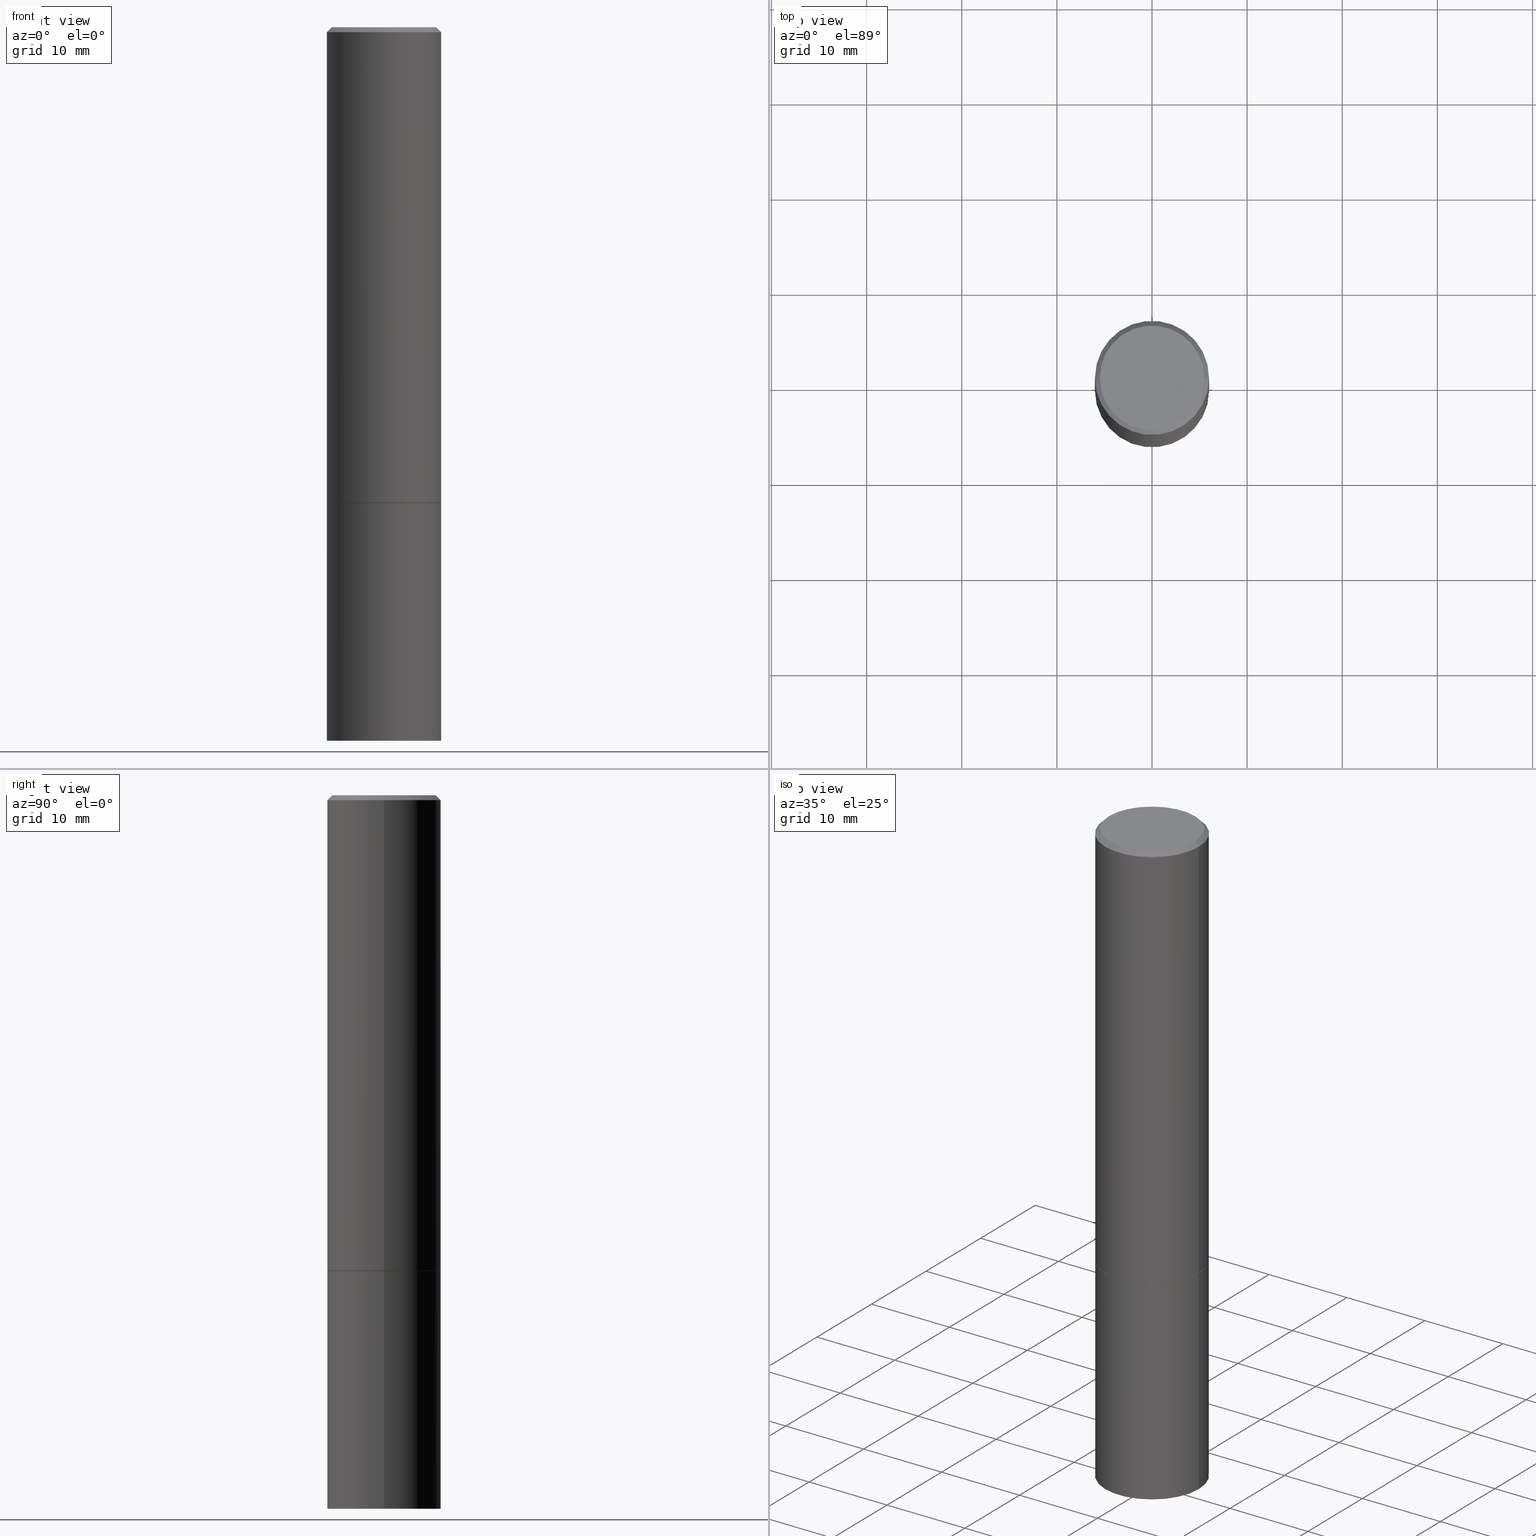
[diagram: canonical four-view strip — front | top / right | iso, engineering-drawing reading convention]
A machine part, canonical four-view strip (front | top / right | iso — engineering-drawing reading convention). The complete STEP part file that produces these views, byte-faithful:
ISO-10303-21;
HEADER;
FILE_DESCRIPTION (( 'STEP AP203' ),
    '1' );
FILE_NAME ('42616.STEP',
    '2024-02-28T03:26:31',
    ( '' ),
    ( '' ),
    'SwSTEP 2.0',
    'SolidWorks 2023',
    '' );
FILE_SCHEMA (( 'CONFIG_CONTROL_DESIGN' ));
ENDSEC;

DATA;
#1 = LOCAL_TIME ( 22, 26, 31.00000000000000000, #212 ) ;
#2 = DIRECTION ( 'NONE',  ( 1.000000000000000000, -6.982962677686268288E-15, 0.000000000000000000 ) ) ;
#3 = ADVANCED_FACE ( 'NONE', ( #285 ), #202, .T. ) ;
#4 = DIRECTION ( 'NONE',  ( 1.000000000000000000, -6.982962677686266711E-15, 4.876176775795936353E-29 ) ) ;
#5 = CARTESIAN_POINT ( 'NONE',  ( -1.043851414335219820E-46, 1.490343170380447200E-32, 4.268512490100411279E-18 ) ) ;
#6 = DIRECTION ( 'NONE',  ( -1.000000000000000000, 6.982962677686265922E-15, -4.876176775795935793E-29 ) ) ;
#7 = EDGE_LOOP ( 'NONE', ( #160, #148, #264, #338 ) ) ;
#8 = CARTESIAN_POINT ( 'NONE',  ( 0.000000000000000000, 0.000000000000000000, 0.000000000000000000 ) ) ;
#9 = LINE ( 'NONE', #290, #26 ) ;
#10 = AXIS2_PLACEMENT_3D ( 'NONE', #41, #325, #96 ) ;
#11 = COORDINATED_UNIVERSAL_TIME_OFFSET ( 5, 0, .BEHIND. ) ;
#12 = CC_DESIGN_DATE_AND_TIME_ASSIGNMENT ( #126, #125, ( #94 ) ) ;
#13 = PERSON_AND_ORGANIZATION ( #224, #319 ) ;
#14 = CIRCLE ( 'NONE', #221, 0.2161999999999997535 ) ;
#15 = CIRCLE ( 'NONE', #123, 0.2361999999999999933 ) ;
#16 = PERSON_AND_ORGANIZATION_ROLE ( 'design_supplier' ) ;
#17 = DIRECTION ( 'NONE',  ( 1.000000000000000000, -6.982962677686265133E-15, 0.000000000000000000 ) ) ;
#18 = VERTEX_POINT ( 'NONE', #117 ) ;
#19 = CC_DESIGN_APPROVAL ( #363, ( #25 ) ) ;
#20 = EDGE_CURVE ( 'NONE', #49, #251, #341, .T. ) ;
#21 = CARTESIAN_POINT ( 'NONE',  ( 4.813905344975440714E-29, -6.872981015512730918E-15, -1.968499999999999694 ) ) ;
#22 = EDGE_LOOP ( 'NONE', ( #203, #164 ) ) ;
#23 = DIRECTION ( 'NONE',  ( 1.000000000000000000, -6.982962677686265922E-15, 4.876176775795935793E-29 ) ) ;
#24 = DIRECTION ( 'NONE',  ( -2.445468806185136877E-29, 3.491481338843145188E-15, 1.000000000000000000 ) ) ;
#25 = PRODUCT_DEFINITION ( 'UNKNOWN', '', #231, #187 ) ;
#26 = VECTOR ( 'NONE', #119, 39.37007874015748143 ) ;
#27 = AXIS2_PLACEMENT_3D ( 'NONE', #320, #59, #230 ) ;
#28 = DIRECTION ( 'NONE',  ( 1.000000000000000000, -6.982962677686267499E-15, 4.876217060660161280E-29 ) ) ;
#29 = VERTEX_POINT ( 'NONE', #322 ) ;
#30 = PLANE ( 'NONE',  #210 ) ;
#31 = LINE ( 'NONE', #147, #85 ) ;
#32 = EDGE_LOOP ( 'NONE', ( #295, #287, #37, #107 ) ) ;
#33 = AXIS2_PLACEMENT_3D ( 'NONE', #176, #344, #194 ) ;
#34 = VECTOR ( 'NONE', #165, 39.37007874015748143 ) ;
#35 = APPROVAL ( #327, 'UNSPECIFIED' ) ;
#36 = ADVANCED_FACE ( 'NONE', ( #64 ), #139, .T. ) ;
#37 = ORIENTED_EDGE ( 'NONE', *, *, #191, .F. ) ;
#38 = DATE_AND_TIME ( #299, #1 ) ;
#39 = CC_DESIGN_APPROVAL ( #302, ( #231 ) ) ;
#40 = DATE_AND_TIME ( #186, #99 ) ;
#41 = CARTESIAN_POINT ( 'NONE',  ( 4.890937612370292426E-31, -6.982962677686317493E-17, -0.02000000000000007674 ) ) ;
#42 = CALENDAR_DATE ( 2024, 27, 2 ) ;
#43 = APPROVAL_PERSON_ORGANIZATION ( #268, #302, #208 ) ;
#44 = SHAPE_DEFINITION_REPRESENTATION ( #131, #321 ) ;
#45 = ORIENTED_EDGE ( 'NONE', *, *, #195, .T. ) ;
#46 = APPLICATION_CONTEXT ( 'configuration controlled 3d designs of mechanical parts and assemblies' ) ;
#47 = PRODUCT ( '42616', '42616', '', ( #60 ) ) ;
#48 = LINE ( 'NONE', #52, #34 ) ;
#49 = VERTEX_POINT ( 'NONE', #201 ) ;
#50 = EDGE_LOOP ( 'NONE', ( #366, #280, #355, #309 ) ) ;
#51 = CIRCLE ( 'NONE', #27, 0.2361999999999999933 ) ;
#52 = CARTESIAN_POINT ( 'NONE',  ( 0.2361999999999997990, -1.690279253850497391E-15, -0.02000000000000007674 ) ) ;
#53 = PRODUCT_RELATED_PRODUCT_CATEGORY ( 'detail', '', ( #47 ) ) ;
#54 = CARTESIAN_POINT ( 'NONE',  ( -0.2361999999999999933, -1.791357638610017633E-15, -1.967499999999999805 ) ) ;
#55 = DIRECTION ( 'NONE',  ( 1.000000000000000000, -6.982962677686266711E-15, 4.876176775795936353E-29 ) ) ;
#56 = FACE_OUTER_BOUND ( 'NONE', #111, .T. ) ;
#57 = AXIS2_PLACEMENT_3D ( 'NONE', #90, #258, #323 ) ;
#58 = VECTOR ( 'NONE', #102, 39.37007874015748143 ) ;
#59 = DIRECTION ( 'NONE',  ( -2.445468806185136597E-29, 3.491481338843145583E-15, 1.000000000000000000 ) ) ;
#60 = MECHANICAL_CONTEXT ( 'NONE', #116, 'mechanical' ) ;
#61 = DIRECTION ( 'NONE',  ( -2.445468806185136877E-29, 3.491481338843145188E-15, 1.000000000000000000 ) ) ;
#62 = ADVANCED_FACE ( 'NONE', ( #172 ), #256, .F. ) ;
#63 = DIRECTION ( 'NONE',  ( -2.438088387897960049E-29, 3.491481338843145188E-15, 1.000000000000000000 ) ) ;
#64 = FACE_OUTER_BOUND ( 'NONE', #136, .T. ) ;
#65 = CIRCLE ( 'NONE', #235, 0.2361999999999999933 ) ;
#66 = AXIS2_PLACEMENT_3D ( 'NONE', #171, #63, #23 ) ;
#67 = DIRECTION ( 'NONE',  ( -2.445468806185136597E-29, 3.491481338843145583E-15, 1.000000000000000000 ) ) ;
#68 = DIMENSIONAL_EXPONENTS ( 1.000000000000000000, 0.000000000000000000, 0.000000000000000000, 0.000000000000000000, 0.000000000000000000, 0.000000000000000000, 0.000000000000000000 ) ;
#69 = APPROVAL_DATE_TIME ( #101, #35 ) ;
#70 = CARTESIAN_POINT ( 'NONE',  ( 0.2161999999999997535, -1.586759460484350410E-15, 4.268512490111238857E-18 ) ) ;
#71 = PERSON_AND_ORGANIZATION ( #224, #319 ) ;
#72 = CYLINDRICAL_SURFACE ( 'NONE', #337, 0.2361999999999999933 ) ;
#73 = VERTEX_POINT ( 'NONE', #112 ) ;
#74 = COORDINATED_UNIVERSAL_TIME_OFFSET ( 5, 0, .BEHIND. ) ;
#75 = AXIS2_PLACEMENT_3D ( 'NONE', #353, #154, #328 ) ;
#76 = MANIFOLD_SOLID_BREP ( 'Body-Move/Copy2[1]', #312 ) ;
#77 = CARTESIAN_POINT ( 'NONE',  ( 7.220980290903470182E-29, -1.030964609733603853E-14, -2.952799999999999869 ) ) ;
#78 = EDGE_CURVE ( 'NONE', #141, #29, #346, .T. ) ;
#79 = ORIENTED_EDGE ( 'NONE', *, *, #259, .F. ) ;
#80 = EDGE_CURVE ( 'NONE', #251, #49, #351, .T. ) ;
#81 = PLANE ( 'NONE',  #66 ) ;
#82 = DIRECTION ( 'NONE',  ( -2.445468806185136597E-29, 3.491481338843145583E-15, 1.000000000000000000 ) ) ;
#83 = DIRECTION ( 'NONE',  ( -2.445468806185136597E-29, 3.491481338843145583E-15, 1.000000000000000000 ) ) ;
#84 = DIRECTION ( 'NONE',  ( 1.000000000000000000, -6.982962677686268288E-15, 0.000000000000000000 ) ) ;
#85 = VECTOR ( 'NONE', #24, 39.37007874015748143 ) ;
#86 =( NAMED_UNIT ( * ) PLANE_ANGLE_UNIT ( ) SI_UNIT ( $, .RADIAN. ) );
#87 = CARTESIAN_POINT ( 'NONE',  ( 4.890937612370292426E-31, -6.982962677686317493E-17, -0.02000000000000007674 ) ) ;
#88 = EDGE_CURVE ( 'NONE', #324, #251, #9, .T. ) ;
#89 =( CONVERSION_BASED_UNIT ( 'INCH', #146 ) LENGTH_UNIT ( ) NAMED_UNIT ( #68 ) );
#90 = CARTESIAN_POINT ( 'NONE',  ( 0.000000000000000000, 0.000000000000000000, 0.000000000000000000 ) ) ;
#91 = ORIENTED_EDGE ( 'NONE', *, *, #274, .T. ) ;
#92 = CLOSED_SHELL ( 'NONE', ( #155, #3, #170, #204, #36, #127, #293, #62 ) ) ;
#93 = EDGE_CURVE ( 'NONE', #181, #73, #31, .T. ) ;
#94 = SECURITY_CLASSIFICATION ( '', '', #128 ) ;
#95 = EDGE_LOOP ( 'NONE', ( #311, #133 ) ) ;
#96 = DIRECTION ( 'NONE',  ( -1.000000000000000000, 6.982962677686266711E-15, 0.000000000000000000 ) ) ;
#97 = DIRECTION ( 'NONE',  ( 1.000000000000000000, -6.982962677686268288E-15, 0.000000000000000000 ) ) ;
#98 = COORDINATED_UNIVERSAL_TIME_OFFSET ( 5, 0, .BEHIND. ) ;
#99 = LOCAL_TIME ( 22, 26, 31.00000000000000000, #74 ) ;
#100 = EDGE_CURVE ( 'NONE', #151, #18, #14, .T. ) ;
#101 = DATE_AND_TIME ( #332, #193 ) ;
#102 = DIRECTION ( 'NONE',  ( -0.7071067811865465735, 2.468850131082246805E-15, -0.7071067811865484609 ) ) ;
#103 = EDGE_CURVE ( 'NONE', #236, #190, #113, .T. ) ;
#104 = DIRECTION ( 'NONE',  ( -2.445468806185136597E-29, 3.491481338843145583E-15, 1.000000000000000000 ) ) ;
#105 = CIRCLE ( 'NONE', #115, 0.2161999999999997535 ) ;
#106 = VERTEX_POINT ( 'NONE', #197 ) ;
#107 = ORIENTED_EDGE ( 'NONE', *, *, #220, .F. ) ;
#108 = AXIS2_PLACEMENT_3D ( 'NONE', #232, #250, #281 ) ;
#109 = DIRECTION ( 'NONE',  ( 0.000000000000000000, 0.000000000000000000, 1.000000000000000000 ) ) ;
#110 = DIRECTION ( 'NONE',  ( -2.445468806185136597E-29, 3.491481338843145583E-15, 1.000000000000000000 ) ) ;
#111 = EDGE_LOOP ( 'NONE', ( #278, #118, #200, #114 ) ) ;
#112 = CARTESIAN_POINT ( 'NONE',  ( -0.2361999999999999933, -6.913011614559027935E-15, -1.968499999999999694 ) ) ;
#113 = CIRCLE ( 'NONE', #216, 0.2351999999999999924 ) ;
#114 = ORIENTED_EDGE ( 'NONE', *, *, #135, .F. ) ;
#115 = AXIS2_PLACEMENT_3D ( 'NONE', #156, #234, #349 ) ;
#116 = APPLICATION_CONTEXT ( 'configuration controlled 3d designs of mechanical parts and assemblies' ) ;
#117 = CARTESIAN_POINT ( 'NONE',  ( -0.2161999999999997535, 1.544631344304200395E-15, 4.268512490089730842E-18 ) ) ;
#118 = ORIENTED_EDGE ( 'NONE', *, *, #103, .T. ) ;
#119 = DIRECTION ( 'NONE',  ( -2.445468806185136877E-29, 3.491481338843145188E-15, 1.000000000000000000 ) ) ;
#120 = CC_DESIGN_PERSON_AND_ORGANIZATION_ASSIGNMENT ( #182, #304, ( #94 ) ) ;
#121 = LINE ( 'NONE', #124, #237 ) ;
#122 = ORIENTED_EDGE ( 'NONE', *, *, #78, .T. ) ;
#123 = AXIS2_PLACEMENT_3D ( 'NONE', #77, #188, #308 ) ;
#124 = CARTESIAN_POINT ( 'NONE',  ( 0.2361999999999998823, -1.649375784469495539E-15, 1.151752954442999528E-29 ) ) ;
#125 = DATE_TIME_ROLE ( 'classification_date' ) ;
#126 = DATE_AND_TIME ( #213, #247 ) ;
#127 = ADVANCED_FACE ( 'NONE', ( #56 ), #329, .T. ) ;
#128 = SECURITY_CLASSIFICATION_LEVEL ( 'unclassified' ) ;
#129 = FACE_OUTER_BOUND ( 'NONE', #339, .T. ) ;
#130 = APPROVAL_DATE_TIME ( #269, #302 ) ;
#131 = PRODUCT_DEFINITION_SHAPE ( 'NONE', 'NONE',  #25 ) ;
#132 = CIRCLE ( 'NONE', #153, 0.2361999999999999933 ) ;
#133 = ORIENTED_EDGE ( 'NONE', *, *, #331, .T. ) ;
#134 = CYLINDRICAL_SURFACE ( 'NONE', #330, 0.2361999999999999933 ) ;
#135 = EDGE_CURVE ( 'NONE', #324, #106, #65, .T. ) ;
#136 = EDGE_LOOP ( 'NONE', ( #242, #249, #364, #350 ) ) ;
#137 = FACE_OUTER_BOUND ( 'NONE', #22, .T. ) ;
#138 = CONICAL_SURFACE ( 'NONE', #282, 0.2351999999999999924, 0.7853981633974141952 ) ;
#139 = CYLINDRICAL_SURFACE ( 'NONE', #57, 0.2361999999999998823 ) ;
#140 = CARTESIAN_POINT ( 'NONE',  ( 4.813905344975440714E-29, -6.872981015512730918E-15, -1.968499999999999694 ) ) ;
#141 = VERTEX_POINT ( 'NONE', #179 ) ;
#142 = CC_DESIGN_PERSON_AND_ORGANIZATION_ASSIGNMENT ( #180, #157, ( #47 ) ) ;
#143 = CARTESIAN_POINT ( 'NONE',  ( 0.000000000000000000, 0.000000000000000000, 0.000000000000000000 ) ) ;
#144 = DIRECTION ( 'NONE',  ( 2.438088387897960049E-29, -3.491481338843145188E-15, -1.000000000000000000 ) ) ;
#145 = ORIENTED_EDGE ( 'NONE', *, *, #78, .F. ) ;
#146 = LENGTH_MEASURE_WITH_UNIT ( LENGTH_MEASURE( 0.02539999999999999897 ), #289 );
#147 = CARTESIAN_POINT ( 'NONE',  ( -0.2361999999999999933, 1.678301941865356591E-15, -1.161852468318208757E-29 ) ) ;
#148 = ORIENTED_EDGE ( 'NONE', *, *, #195, .F. ) ;
#149 = AXIS2_PLACEMENT_3D ( 'NONE', #272, #162, #248 ) ;
#150 = DIRECTION ( 'NONE',  ( 1.000000000000000000, -6.982962677686266711E-15, 0.000000000000000000 ) ) ;
#151 = VERTEX_POINT ( 'NONE', #70 ) ;
#152 = FACE_OUTER_BOUND ( 'NONE', #229, .T. ) ;
#153 = AXIS2_PLACEMENT_3D ( 'NONE', #189, #104, #17 ) ;
#154 = DIRECTION ( 'NONE',  ( -2.445468806185136597E-29, 3.491481338843145583E-15, 1.000000000000000000 ) ) ;
#155 = ADVANCED_FACE ( 'NONE', ( #183 ), #138, .T. ) ;
#156 = CARTESIAN_POINT ( 'NONE',  ( -1.043851414335219820E-46, 1.490343170380447200E-32, 4.268512490100411279E-18 ) ) ;
#157 = PERSON_AND_ORGANIZATION_ROLE ( 'design_owner' ) ;
#158 = CONICAL_SURFACE ( 'NONE', #10, 0.2361999999999997990, 0.7853981633974469467 ) ;
#159 = APPROVAL_STATUS ( 'not_yet_approved' ) ;
#160 = ORIENTED_EDGE ( 'NONE', *, *, #274, .F. ) ;
#161 = EDGE_LOOP ( 'NONE', ( #218, #298, #173, #145 ) ) ;
#162 = DIRECTION ( 'NONE',  ( 2.445468806185136597E-29, -3.491481338843145583E-15, -1.000000000000000000 ) ) ;
#163 = LOCAL_TIME ( 22, 26, 31.00000000000000000, #358 ) ;
#164 = ORIENTED_EDGE ( 'NONE', *, *, #238, .F. ) ;
#165 = DIRECTION ( 'NONE',  ( 0.7071067811865465735, -7.319954787623252890E-15, -0.7071067811865484609 ) ) ;
#166 = FACE_OUTER_BOUND ( 'NONE', #262, .T. ) ;
#167 = CARTESIAN_POINT ( 'NONE',  ( 1.509716530915769140E-15, 0.2161999999999997535, -7.527240092128371176E-16 ) ) ;
#168 = CARTESIAN_POINT ( 'NONE',  ( 1.649375784469568312E-15, 0.2361999999999896960, -2.952800000000000757 ) ) ;
#169 =( GEOMETRIC_REPRESENTATION_CONTEXT ( 3 ) GLOBAL_UNCERTAINTY_ASSIGNED_CONTEXT ( ( #241 ) ) GLOBAL_UNIT_ASSIGNED_CONTEXT ( ( #89, #86, #199 ) ) REPRESENTATION_CONTEXT ( 'NONE', 'WORKASPACE' ) );
#170 = ADVANCED_FACE ( 'NONE', ( #152 ), #158, .T. ) ;
#171 = CARTESIAN_POINT ( 'NONE',  ( 4.813905344975440714E-29, -6.872981015512730918E-15, -1.968499999999999694 ) ) ;
#172 = FACE_OUTER_BOUND ( 'NONE', #206, .T. ) ;
#173 = ORIENTED_EDGE ( 'NONE', *, *, #335, .F. ) ;
#174 = DIRECTION ( 'NONE',  ( -1.000000000000000000, 6.982962677686265922E-15, -4.876176775795935793E-29 ) ) ;
#175 = FACE_OUTER_BOUND ( 'NONE', #95, .T. ) ;
#176 = CARTESIAN_POINT ( 'NONE',  ( 0.000000000000000000, 0.000000000000000000, 0.000000000000000000 ) ) ;
#177 = AXIS2_PLACEMENT_3D ( 'NONE', #87, #82, #318 ) ;
#178 = APPROVAL_PERSON_ORGANIZATION ( #184, #363, #354 ) ;
#179 = CARTESIAN_POINT ( 'NONE',  ( 0.2361999999999999933, -1.195902188180553348E-14, -2.952799999999999869 ) ) ;
#180 = PERSON_AND_ORGANIZATION ( #224, #319 ) ;
#181 = VERTEX_POINT ( 'NONE', #296 ) ;
#182 = PERSON_AND_ORGANIZATION ( #224, #319 ) ;
#183 = FACE_OUTER_BOUND ( 'NONE', #32, .T. ) ;
#184 = PERSON_AND_ORGANIZATION ( #224, #319 ) ;
#185 = EDGE_CURVE ( 'NONE', #106, #49, #121, .T. ) ;
#186 = CALENDAR_DATE ( 2024, 27, 2 ) ;
#187 = DESIGN_CONTEXT ( 'detailed design', #46, 'design' ) ;
#188 = DIRECTION ( 'NONE',  ( -2.445468806185136597E-29, 3.491481338843145583E-15, 1.000000000000000000 ) ) ;
#189 = CARTESIAN_POINT ( 'NONE',  ( 7.220980290903470182E-29, -1.030964609733603853E-14, -2.952799999999999869 ) ) ;
#190 = VERTEX_POINT ( 'NONE', #239 ) ;
#191 = EDGE_CURVE ( 'NONE', #106, #324, #270, .T. ) ;
#192 = AXIS2_PLACEMENT_3D ( 'NONE', #140, #228, #84 ) ;
#193 = LOCAL_TIME ( 22, 26, 31.00000000000000000, #98 ) ;
#194 = DIRECTION ( 'NONE',  ( 1.000000000000000000, -6.982962677686267499E-15, 4.876176775795936353E-29 ) ) ;
#195 = EDGE_CURVE ( 'NONE', #18, #151, #105, .T. ) ;
#196 = LINE ( 'NONE', #227, #291 ) ;
#197 = CARTESIAN_POINT ( 'NONE',  ( 0.2361999999999999933, -8.518865318643383648E-15, -1.967499999999999805 ) ) ;
#198 = MANIFOLD_SOLID_BREP ( 'Body-Move/Copy2[2]', #92 ) ;
#199 =( NAMED_UNIT ( * ) SI_UNIT ( $, .STERADIAN. ) SOLID_ANGLE_UNIT ( ) );
#200 = ORIENTED_EDGE ( 'NONE', *, *, #220, .T. ) ;
#201 = CARTESIAN_POINT ( 'NONE',  ( 0.2361999999999997990, -1.690279253850497391E-15, -0.02000000000000007674 ) ) ;
#202 = CYLINDRICAL_SURFACE ( 'NONE', #33, 0.2361999999999998823 ) ;
#203 = ORIENTED_EDGE ( 'NONE', *, *, #252, .F. ) ;
#204 = ADVANCED_FACE ( 'NONE', ( #294 ), #313, .T. ) ;
#205 = DIRECTION ( 'NONE',  ( 1.000000000000000000, -6.982962677686269077E-15, 0.000000000000000000 ) ) ;
#206 = EDGE_LOOP ( 'NONE', ( #45, #314 ) ) ;
#207 = EDGE_CURVE ( 'NONE', #18, #251, #277, .T. ) ;
#208 = APPROVAL_ROLE ( '' ) ;
#209 = APPROVAL_DATE_TIME ( #38, #363 ) ;
#210 = AXIS2_PLACEMENT_3D ( 'NONE', #315, #255, #174 ) ;
#211 = CC_DESIGN_PERSON_AND_ORGANIZATION_ASSIGNMENT ( #301, #16, ( #231 ) ) ;
#212 = COORDINATED_UNIVERSAL_TIME_OFFSET ( 5, 0, .BEHIND. ) ;
#213 = CALENDAR_DATE ( 2024, 27, 2 ) ;
#214 = LINE ( 'NONE', #306, #223 ) ;
#215 = DATE_TIME_ROLE ( 'creation_date' ) ;
#216 = AXIS2_PLACEMENT_3D ( 'NONE', #260, #316, #2 ) ;
#217 = CIRCLE ( 'NONE', #108, 0.2361999999999999933 ) ;
#218 = ORIENTED_EDGE ( 'NONE', *, *, #252, .T. ) ;
#219 = CARTESIAN_POINT ( 'NONE',  ( -0.2351999999999999924, -5.196486046656753130E-15, -1.968499999999999694 ) ) ;
#220 = EDGE_CURVE ( 'NONE', #190, #106, #214, .T. ) ;
#221 = AXIS2_PLACEMENT_3D ( 'NONE', #5, #110, #28 ) ;
#222 = DIRECTION ( 'NONE',  ( 1.000000000000000000, 0.000000000000000000, 0.000000000000000000 ) ) ;
#223 = VECTOR ( 'NONE', #361, 39.37007874015748854 ) ;
#224 = PERSON ( 'UNSPECIFIED', 'UNSPECIFIED', 'UNSPECIFIED', ('UNSPECIFIED'), ('UNSPECIFIED'), ('UNSPECIFIED') ) ;
#225 = ORIENTED_EDGE ( 'NONE', *, *, #331, .F. ) ;
#226 = CC_DESIGN_DATE_AND_TIME_ASSIGNMENT ( #40, #215, ( #25 ) ) ;
#227 = CARTESIAN_POINT ( 'NONE',  ( -0.2351999999999999924, -5.201784501004975532E-15, -1.968499999999999694 ) ) ;
#228 = DIRECTION ( 'NONE',  ( -2.445468806185136597E-29, 3.491481338843145583E-15, 1.000000000000000000 ) ) ;
#229 = EDGE_LOOP ( 'NONE', ( #273, #91, #233, #275 ) ) ;
#230 = DIRECTION ( 'NONE',  ( 1.000000000000000000, -6.982962677686265133E-15, 0.000000000000000000 ) ) ;
#231 = PRODUCT_DEFINITION_FORMATION_WITH_SPECIFIED_SOURCE ( 'ANY', '', #47, .NOT_KNOWN. ) ;
#232 = CARTESIAN_POINT ( 'NONE',  ( 4.813905344975440714E-29, -6.872981015512730918E-15, -1.968499999999999694 ) ) ;
#233 = ORIENTED_EDGE ( 'NONE', *, *, #20, .T. ) ;
#234 = DIRECTION ( 'NONE',  ( -2.445468806185136597E-29, 3.491481338843145583E-15, 1.000000000000000000 ) ) ;
#235 = AXIS2_PLACEMENT_3D ( 'NONE', #333, #67, #205 ) ;
#236 = VERTEX_POINT ( 'NONE', #219 ) ;
#237 = VECTOR ( 'NONE', #265, 39.37007874015748143 ) ;
#238 = EDGE_CURVE ( 'NONE', #181, #141, #132, .T. ) ;
#239 = CARTESIAN_POINT ( 'NONE',  ( 0.2351999999999999924, -8.515373837304542218E-15, -1.968499999999999694 ) ) ;
#240 = PERSON_AND_ORGANIZATION_ROLE ( 'creator' ) ;
#241 = UNCERTAINTY_MEASURE_WITH_UNIT (LENGTH_MEASURE( 1.000000000000000082E-05 ), #89, 'distance_accuracy_value', 'NONE');
#242 = ORIENTED_EDGE ( 'NONE', *, *, #88, .F. ) ;
#243 = APPROVAL_ROLE ( '' ) ;
#244 = CC_DESIGN_PERSON_AND_ORGANIZATION_ASSIGNMENT ( #71, #240, ( #25 ) ) ;
#245 = PERSON_AND_ORGANIZATION ( #224, #319 ) ;
#246 = CC_DESIGN_SECURITY_CLASSIFICATION ( #94, ( #231 ) ) ;
#247 = LOCAL_TIME ( 22, 26, 31.00000000000000000, #11 ) ;
#248 = DIRECTION ( 'NONE',  ( -1.000000000000000000, 6.982962677686266711E-15, 0.000000000000000000 ) ) ;
#249 = ORIENTED_EDGE ( 'NONE', *, *, #135, .T. ) ;
#250 = DIRECTION ( 'NONE',  ( -2.445468806185136597E-29, 3.491481338843145583E-15, 1.000000000000000000 ) ) ;
#251 = VERTEX_POINT ( 'NONE', #310 ) ;
#252 = EDGE_CURVE ( 'NONE', #141, #181, #15, .T. ) ;
#253 = FACE_OUTER_BOUND ( 'NONE', #161, .T. ) ;
#254 = DIRECTION ( 'NONE',  ( -2.445468806185136597E-29, 3.491481338843145583E-15, 1.000000000000000000 ) ) ;
#255 = DIRECTION ( 'NONE',  ( 2.438088387897960049E-29, -3.491481338843145188E-15, -1.000000000000000000 ) ) ;
#256 = PLANE ( 'NONE',  #336 ) ;
#257 = ORIENTED_EDGE ( 'NONE', *, *, #93, .F. ) ;
#258 = DIRECTION ( 'NONE',  ( -2.445468806185136597E-29, 3.491481338843145583E-15, 1.000000000000000000 ) ) ;
#259 = EDGE_CURVE ( 'NONE', #190, #236, #347, .T. ) ;
#260 = CARTESIAN_POINT ( 'NONE',  ( 4.813905344975440714E-29, -6.872981015512730918E-15, -1.968499999999999694 ) ) ;
#261 = CARTESIAN_POINT ( 'NONE',  ( 4.890937612370292426E-31, -6.982962677686317493E-17, -0.02000000000000007674 ) ) ;
#262 = EDGE_LOOP ( 'NONE', ( #79, #271 ) ) ;
#263 = CC_DESIGN_PERSON_AND_ORGANIZATION_ASSIGNMENT ( #13, #267, ( #231 ) ) ;
#264 = ORIENTED_EDGE ( 'NONE', *, *, #207, .T. ) ;
#265 = DIRECTION ( 'NONE',  ( -2.445468806185136877E-29, 3.491481338843145188E-15, 1.000000000000000000 ) ) ;
#266 = VECTOR ( 'NONE', #61, 39.37007874015748143 ) ;
#267 = PERSON_AND_ORGANIZATION_ROLE ( 'creator' ) ;
#268 = PERSON_AND_ORGANIZATION ( #224, #319 ) ;
#269 = DATE_AND_TIME ( #42, #163 ) ;
#270 = CIRCLE ( 'NONE', #75, 0.2361999999999999933 ) ;
#271 = ORIENTED_EDGE ( 'NONE', *, *, #103, .F. ) ;
#272 = CARTESIAN_POINT ( 'NONE',  ( 4.890937612370292426E-31, -6.982962677686317493E-17, -0.02000000000000007674 ) ) ;
#273 = ORIENTED_EDGE ( 'NONE', *, *, #100, .F. ) ;
#274 = EDGE_CURVE ( 'NONE', #151, #49, #48, .T. ) ;
#275 = ORIENTED_EDGE ( 'NONE', *, *, #207, .F. ) ;
#276 = AXIS2_PLACEMENT_3D ( 'NONE', #261, #254, #150 ) ;
#277 = LINE ( 'NONE', #359, #58 ) ;
#278 = ORIENTED_EDGE ( 'NONE', *, *, #345, .F. ) ;
#279 = ADVANCED_FACE ( 'NONE', ( #129 ), #72, .T. ) ;
#280 = ORIENTED_EDGE ( 'NONE', *, *, #88, .T. ) ;
#281 = DIRECTION ( 'NONE',  ( 1.000000000000000000, -6.982962677686265133E-15, 0.000000000000000000 ) ) ;
#282 = AXIS2_PLACEMENT_3D ( 'NONE', #326, #352, #97 ) ;
#283 = DIRECTION ( 'NONE',  ( 2.438088387897960049E-29, -3.491481338843145188E-15, -1.000000000000000000 ) ) ;
#284 = AXIS2_PLACEMENT_3D ( 'NONE', #21, #362, #340 ) ;
#285 = FACE_OUTER_BOUND ( 'NONE', #50, .T. ) ;
#286 = DIRECTION ( 'NONE',  ( -2.445468806185136597E-29, 3.491481338843145583E-15, 1.000000000000000000 ) ) ;
#287 = ORIENTED_EDGE ( 'NONE', *, *, #345, .T. ) ;
#288 = ADVANCED_FACE ( 'NONE', ( #175 ), #30, .F. ) ;
#289 =( LENGTH_UNIT ( ) NAMED_UNIT ( * ) SI_UNIT ( $, .METRE. ) );
#290 = CARTESIAN_POINT ( 'NONE',  ( -0.2361999999999998823, 1.678301941865355803E-15, -1.161852468318208336E-29 ) ) ;
#291 = VECTOR ( 'NONE', #348, 39.37007874015748854 ) ;
#292 = CARTESIAN_POINT ( 'NONE',  ( 0.2361999999999999933, -1.649375784469496131E-15, 1.151752954443000088E-29 ) ) ;
#293 = ADVANCED_FACE ( 'NONE', ( #166 ), #81, .F. ) ;
#294 = FACE_OUTER_BOUND ( 'NONE', #7, .T. ) ;
#295 = ORIENTED_EDGE ( 'NONE', *, *, #259, .T. ) ;
#296 = CARTESIAN_POINT ( 'NONE',  ( -0.2361999999999999933, -6.913011614559027935E-15, -2.952799999999999869 ) ) ;
#297 = APPROVAL_PERSON_ORGANIZATION ( #245, #35, #243 ) ;
#298 = ORIENTED_EDGE ( 'NONE', *, *, #93, .T. ) ;
#299 = CALENDAR_DATE ( 2024, 27, 2 ) ;
#300 = ORIENTED_EDGE ( 'NONE', *, *, #238, .T. ) ;
#301 = PERSON_AND_ORGANIZATION ( #224, #319 ) ;
#302 = APPROVAL ( #159, 'UNSPECIFIED' ) ;
#303 = APPROVAL_STATUS ( 'not_yet_approved' ) ;
#304 = PERSON_AND_ORGANIZATION_ROLE ( 'classification_officer' ) ;
#305 = CC_DESIGN_APPROVAL ( #35, ( #94 ) ) ;
#306 = CARTESIAN_POINT ( 'NONE',  ( 0.2351999999999999924, -8.515373837304542218E-15, -1.968499999999999694 ) ) ;
#307 = ADVANCED_FACE ( 'NONE', ( #253 ), #134, .T. ) ;
#308 = DIRECTION ( 'NONE',  ( 1.000000000000000000, -6.982962677686265133E-15, 0.000000000000000000 ) ) ;
#309 = ORIENTED_EDGE ( 'NONE', *, *, #185, .F. ) ;
#310 = CARTESIAN_POINT ( 'NONE',  ( -0.2361999999999997990, 1.579546157692631649E-15, -0.02000000000000007674 ) ) ;
#311 = ORIENTED_EDGE ( 'NONE', *, *, #335, .T. ) ;
#312 = CLOSED_SHELL ( 'NONE', ( #307, #357, #288, #279 ) ) ;
#313 = CONICAL_SURFACE ( 'NONE', #149, 0.2361999999999997990, 0.7853981633974469467 ) ;
#314 = ORIENTED_EDGE ( 'NONE', *, *, #100, .T. ) ;
#315 = CARTESIAN_POINT ( 'NONE',  ( 1.649375784469544054E-15, 0.2361999999999931377, -1.968500000000000583 ) ) ;
#316 = DIRECTION ( 'NONE',  ( -2.445468806185136597E-29, 3.491481338843145583E-15, 1.000000000000000000 ) ) ;
#317 = PLANE ( 'NONE',  #360 ) ;
#318 = DIRECTION ( 'NONE',  ( 1.000000000000000000, -6.982962677686266711E-15, 0.000000000000000000 ) ) ;
#319 = ORGANIZATION ( 'UNSPECIFIED', 'UNSPECIFIED', '' ) ;
#320 = CARTESIAN_POINT ( 'NONE',  ( 4.813905344975440714E-29, -6.872981015512730918E-15, -1.968499999999999694 ) ) ;
#321 = ADVANCED_BREP_SHAPE_REPRESENTATION ( '42616', ( #76, #198, #356 ), #169 ) ;
#322 = CARTESIAN_POINT ( 'NONE',  ( 0.2361999999999999933, -8.522356799982226655E-15, -1.968499999999999694 ) ) ;
#323 = DIRECTION ( 'NONE',  ( 1.000000000000000000, -6.982962677686267499E-15, 4.876176775795936353E-29 ) ) ;
#324 = VERTEX_POINT ( 'NONE', #54 ) ;
#325 = DIRECTION ( 'NONE',  ( 2.445468806185136597E-29, -3.491481338843145583E-15, -1.000000000000000000 ) ) ;
#326 = CARTESIAN_POINT ( 'NONE',  ( 4.813905344975440714E-29, -6.872981015512730918E-15, -1.968499999999999694 ) ) ;
#327 = APPROVAL_STATUS ( 'not_yet_approved' ) ;
#328 = DIRECTION ( 'NONE',  ( 1.000000000000000000, -6.982962677686269077E-15, 0.000000000000000000 ) ) ;
#329 = CONICAL_SURFACE ( 'NONE', #192, 0.2351999999999999924, 0.7853981633974141952 ) ;
#330 = AXIS2_PLACEMENT_3D ( 'NONE', #143, #286, #4 ) ;
#331 = EDGE_CURVE ( 'NONE', #73, #29, #51, .T. ) ;
#332 = CALENDAR_DATE ( 2024, 27, 2 ) ;
#333 = CARTESIAN_POINT ( 'NONE',  ( 4.811459876169255671E-29, -6.869489534173887122E-15, -1.967499999999999805 ) ) ;
#334 = APPLICATION_PROTOCOL_DEFINITION ( 'international standard', 'config_control_design', 1994, #46 ) ;
#335 = EDGE_CURVE ( 'NONE', #29, #73, #217, .T. ) ;
#336 = AXIS2_PLACEMENT_3D ( 'NONE', #167, #144, #6 ) ;
#337 = AXIS2_PLACEMENT_3D ( 'NONE', #343, #83, #55 ) ;
#338 = ORIENTED_EDGE ( 'NONE', *, *, #80, .T. ) ;
#339 = EDGE_LOOP ( 'NONE', ( #257, #300, #122, #225 ) ) ;
#340 = DIRECTION ( 'NONE',  ( 1.000000000000000000, -6.982962677686268288E-15, 0.000000000000000000 ) ) ;
#341 = CIRCLE ( 'NONE', #177, 0.2361999999999997990 ) ;
#342 = APPLICATION_PROTOCOL_DEFINITION ( 'international standard', 'config_control_design', 1994, #116 ) ;
#343 = CARTESIAN_POINT ( 'NONE',  ( 0.000000000000000000, 0.000000000000000000, 0.000000000000000000 ) ) ;
#344 = DIRECTION ( 'NONE',  ( -2.445468806185136597E-29, 3.491481338843145583E-15, 1.000000000000000000 ) ) ;
#345 = EDGE_CURVE ( 'NONE', #236, #324, #196, .T. ) ;
#346 = LINE ( 'NONE', #292, #266 ) ;
#347 = CIRCLE ( 'NONE', #284, 0.2351999999999999924 ) ;
#348 = DIRECTION ( 'NONE',  ( -0.7071067811865232589, 7.493145998870265808E-15, 0.7071067811865715536 ) ) ;
#349 = DIRECTION ( 'NONE',  ( 1.000000000000000000, -6.982962677686267499E-15, 4.876217060660161280E-29 ) ) ;
#350 = ORIENTED_EDGE ( 'NONE', *, *, #80, .F. ) ;
#351 = CIRCLE ( 'NONE', #276, 0.2361999999999997990 ) ;
#352 = DIRECTION ( 'NONE',  ( -2.445468806185136597E-29, 3.491481338843145583E-15, 1.000000000000000000 ) ) ;
#353 = CARTESIAN_POINT ( 'NONE',  ( 4.811459876169255671E-29, -6.869489534173887122E-15, -1.967499999999999805 ) ) ;
#354 = APPROVAL_ROLE ( '' ) ;
#355 = ORIENTED_EDGE ( 'NONE', *, *, #20, .F. ) ;
#356 = AXIS2_PLACEMENT_3D ( 'NONE', #8, #109, #222 ) ;
#357 = ADVANCED_FACE ( 'NONE', ( #137 ), #317, .T. ) ;
#358 = COORDINATED_UNIVERSAL_TIME_OFFSET ( 5, 0, .BEHIND. ) ;
#359 = CARTESIAN_POINT ( 'NONE',  ( -0.2361999999999997990, 1.579546157692631649E-15, -0.02000000000000007674 ) ) ;
#360 = AXIS2_PLACEMENT_3D ( 'NONE', #168, #283, #365 ) ;
#361 = DIRECTION ( 'NONE',  ( 0.7071067811865232589, -2.468850131082003836E-15, 0.7071067811865715536 ) ) ;
#362 = DIRECTION ( 'NONE',  ( -2.445468806185136597E-29, 3.491481338843145583E-15, 1.000000000000000000 ) ) ;
#363 = APPROVAL ( #303, 'UNSPECIFIED' ) ;
#364 = ORIENTED_EDGE ( 'NONE', *, *, #185, .T. ) ;
#365 = DIRECTION ( 'NONE',  ( -1.000000000000000000, 6.982962677686265922E-15, -4.876176775795935793E-29 ) ) ;
#366 = ORIENTED_EDGE ( 'NONE', *, *, #191, .T. ) ;
ENDSEC;
END-ISO-10303-21;
